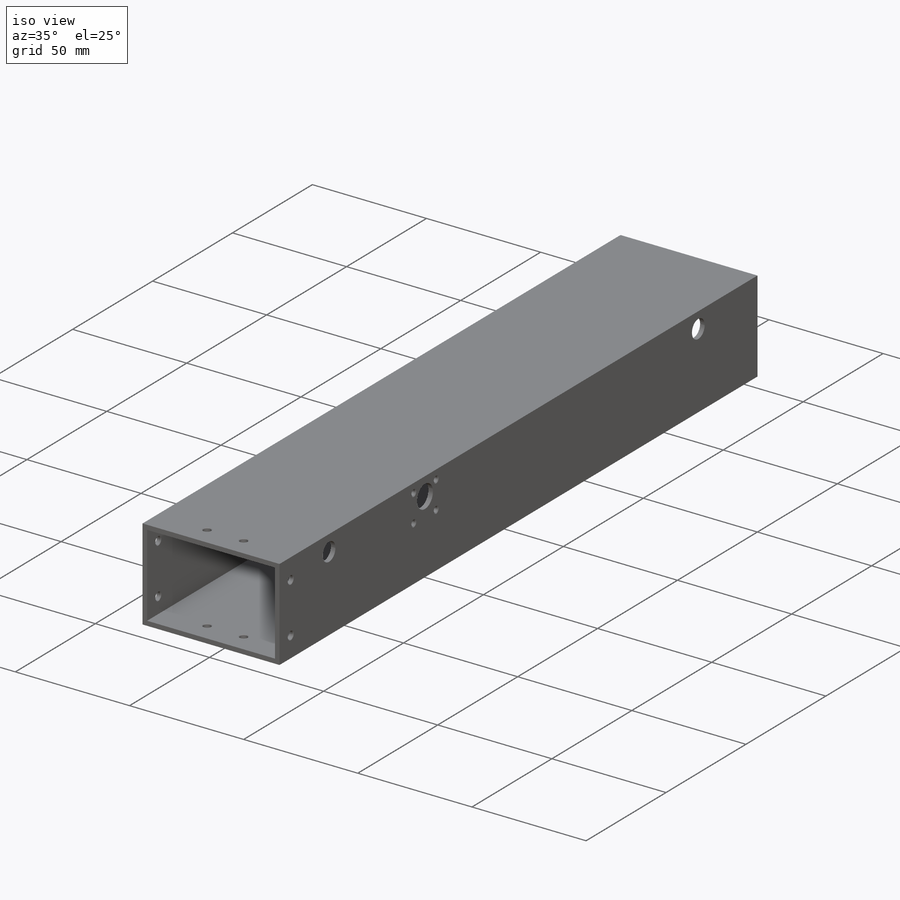
[diagram: iso view]
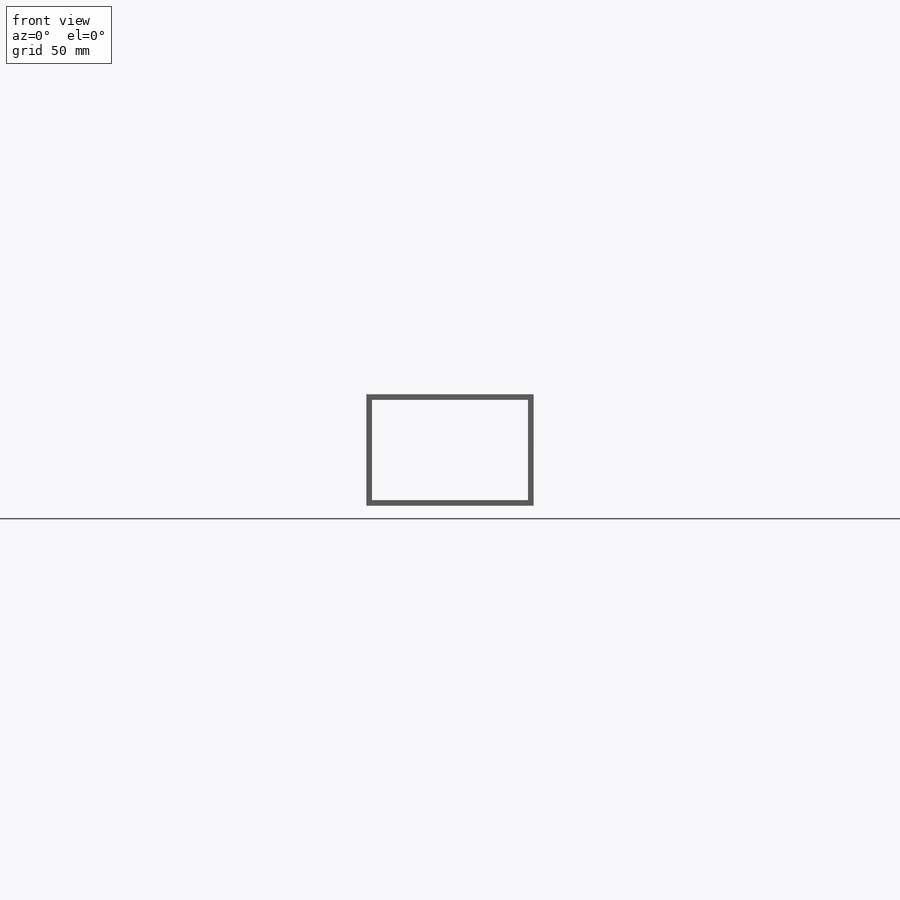
[diagram: front view]
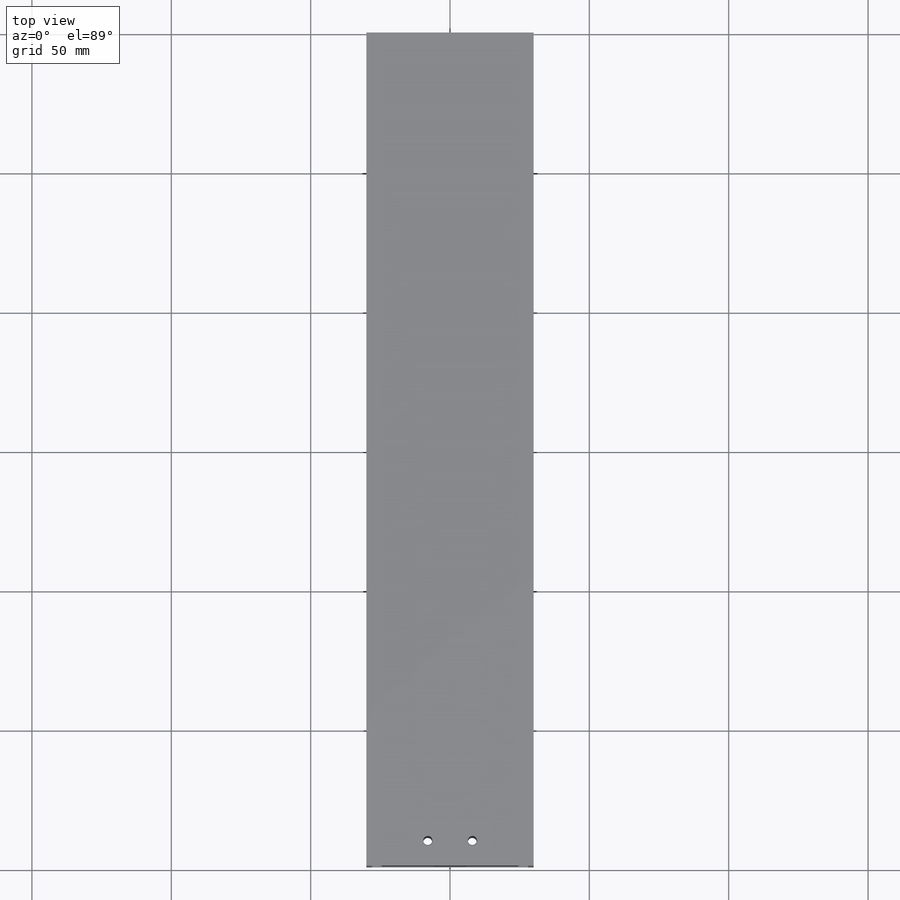
[diagram: top view]
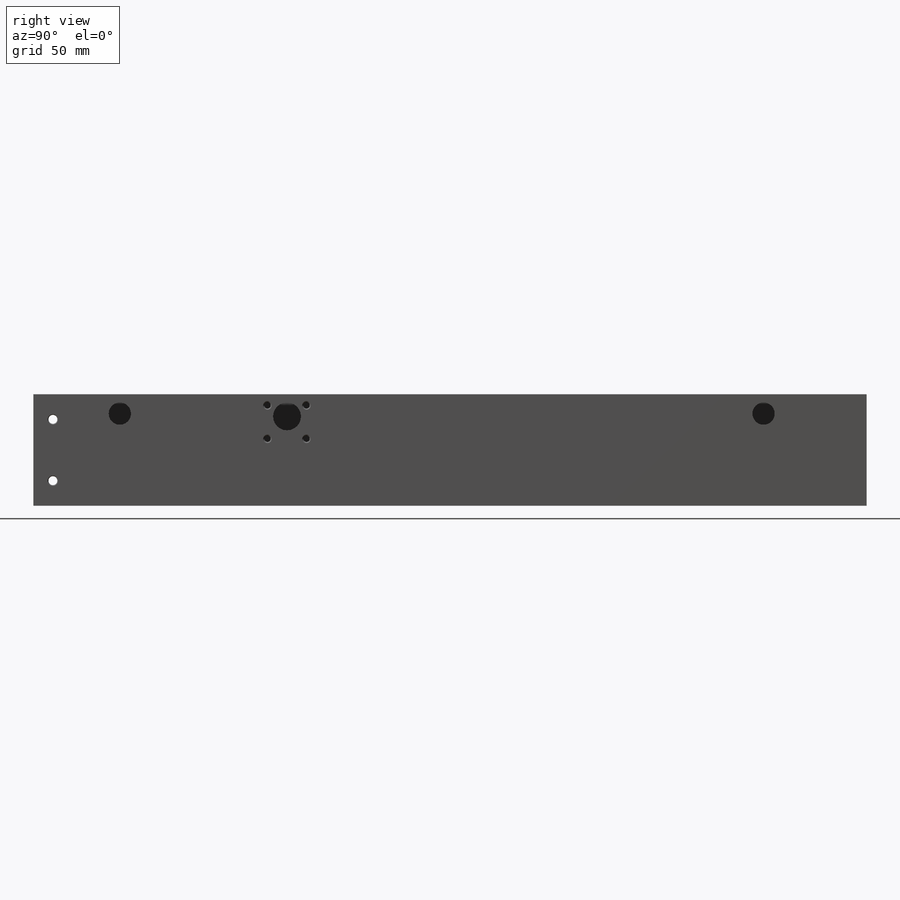
[diagram: right view]
SOLIDWORKS PART (.sldprt)
format: sldprt  version: not decoded by parser v0  size: 569,344 bytes
history: native  units: mm
features: sketch x16, hole x6, thread x4, plane x3, cut_extrude x3, material x1, extrude x1 (+14 scaffold rows collapsed)
feature tree (48):
  scaffold x14  (default folders/planes/origin — collapsed)
  material  "6063-T1"
  plane  "Спереди"
  plane  "Сверху"
  plane  "Справа"
  sketch  "Эскиз1"  dims[D1=30.0mm D2=60.0mm D3=20.0mm D4=40.0mm D5=2.0mm D6=2.0mm D7=2.0mm D8=2.0mm]
  extrude  "Вытянуть1"  Depth=299mm
  hole  "Отверстие с зазором M31"  [1 undecoded]
  sketch  "Эскиз3"  dims[c1.D1=6.0mm c1.D2=9.0mm c1.D3=8.0mm c1.D4=9.0mm c2.D1=7.0mm]
  sketch  "Эскиз2"  dims[hole-wizard template sketch: 47 standard entries collapsed; hole parameters kept: c15.Глубина сквозного отверстия=2.0mm c15.Диаметр передней зенковки=3.7mm c15.D4=~3.666174mm c15.Угол передней зенковки=90.0deg c15.Диаметр задней зенковки=3.7mm c15.D6=~9.919017mm c15.Угол задней зенковки=90.0deg]
  hole  "Отверстие с зазором M32"  [1 undecoded]
  sketch  "Эскиз5"  dims[D1=6.0mm D2=6.0mm D3=8.0mm D4=8.0mm]
  sketch  "Эскиз4"  dims[hole-wizard template sketch: 47 standard entries collapsed; hole parameters kept: c15.Глубина сквозного отверстия=2.0mm c15.Диаметр передней зенковки=3.7mm c15.D4=~3.666174mm c15.Угол передней зенковки=90.0deg c15.Диаметр задней зенковки=3.7mm c15.D6=~9.919017mm c15.Угол задней зенковки=90.0deg]
  hole  "Отверстие с зазором M33"  [1 undecoded]
  sketch  "Эскиз7"  dims[c1.D1=9.0mm c1.D2=8.0mm c1.D3=23.0mm c1.D4=22.0mm c2.D2=16.0mm c2.D1=9.0mm]
  sketch  "Эскиз6"  dims[hole-wizard template sketch: 47 standard entries collapsed; hole parameters kept: c15.Глубина сквозного отверстия=2.0mm c15.Диаметр передней зенковки=3.7mm c15.D4=~3.666174mm c15.Угол передней зенковки=90.0deg c15.Диаметр задней зенковки=3.7mm c15.D6=~9.919017mm c15.Угол задней зенковки=90.0deg]
  hole  "Отверстие с зазором M34"  [1 undecoded]
  sketch  "Эскиз9"  dims[D1=8.0mm D2=8.0mm D3=25.0mm D4=25.0mm]
  sketch  "Эскиз8"  dims[hole-wizard template sketch: 47 standard entries collapsed; hole parameters kept: c15.Глубина сквозного отверстия=2.0mm c15.Диаметр передней зенковки=3.7mm c15.D4=~3.666174mm c15.Угол передней зенковки=90.0deg c15.Диаметр задней зенковки=3.7mm c15.D6=~9.919017mm c15.Угол задней зенковки=90.0deg]
  sketch  "Эскиз12"  dims[c1.D1=8.0mm c1.D2=10.5mm c1.D3=10.5mm c1.D4=10.5mm c1.D5=10.5mm c1.D6=10.5mm c2.D2=9.0mm c2.D3=60.5mm c2.D4=11.0mm c2.D5=33.0mm c2.D6=18.0mm c3.D2=205.5mm c3.D3=35.0mm]
  cut_extrude  "Воздух вход-выход"  [1 undecoded]
  sketch  "Эскиз13"  dims[D1=16.0mm]
  cut_extrude  "Вырез-Вытянуть2"  Depth=0.5mm
  hole  "Зенковка для винта с потайной головкой M31"  [1 undecoded]
  sketch  "Трехмерный эскиз1"  dims[c1.D1=10.5mm c1.D2=12.0mm c1.D3=4.0mm c1.D4=12.0mm c1.D5=12.0mm c2.D4=4.0mm c2.D5=10.5mm c2.D6=4.0mm c2.D7=12.0mm c2.D8=4.0mm c2.D9=12.0mm]
  sketch  "Эскиз14"  dims[hole-wizard template sketch: 47 standard entries collapsed; hole parameters kept: c15.Глубина сквозного отверстия=2.0mm c15.Диаметр передней зенковки=5.7mm c15.D4=~3.666174mm c15.Угол передней зенковки=90.0deg c15.Диаметр задней зенковки=3.45mm c15.D6=~9.919017mm c15.Угол задней зенковки=90.0deg]
  sketch  "Эскиз15"  dims[c1.D1=~5.293743mm c1.D3=~5.293743mm c1.D4=8.0mm c1.D5=9.0mm c1.D2=8.0mm c2.D1=5.0mm c2.D2=31.0mm c2.D3=37.0mm c2.D6=0.5mm c2.D7=40.0mm c3.D6=6.5mm c3.D2=268.0mm]
  cut_extrude  "Вырез-Вытянуть3"  [1 undecoded]
  hole  "Отверстие обработанное метчиком #4-401"  [1 undecoded]
  sketch  "Эскиз17"  dims[c1.D2=9.0mm c1.D1=14.0mm c2.D2=8.0mm c2.D3=7.0mm c2.D4=12.0mm c3.D2=5.0mm]
  sketch  "Эскиз16"  dims[hole-wizard template sketch: 46 standard entries collapsed; hole parameters kept: c15.Диаметр проходного сверла=2.2606mm c15.Глубина проходного сверла=2.0mm c15.Диаметр передней зенковки=3.048mm c15.D4=~3.666174mm c15.Угол передней зенковки=110.0deg c15.Диаметр задней зенковки=3.048mm c15.D6=~9.919017mm c15.Угол задней зенковки=110.0deg]
  thread  "Отверстие резьбы1"  Diameter=2.8448mm  [1 undecoded]
  thread  "Отверстие резьбы2"  Diameter=2.8448mm  [1 undecoded]
  thread  "Отверстие резьбы3"  Diameter=2.8448mm  [1 undecoded]
  thread  "Отверстие резьбы4"  Diameter=2.8448mm  [1 undecoded]
decode coverage: 22 of 30 modeling features carry decoded parameters
note: ~ marks probable driven/reference dimensions
note: 12 parameter values undecoded
summary: no parameter record found for 8 features
note: suppression state not decoded; provenance and decode notes live in map.json
